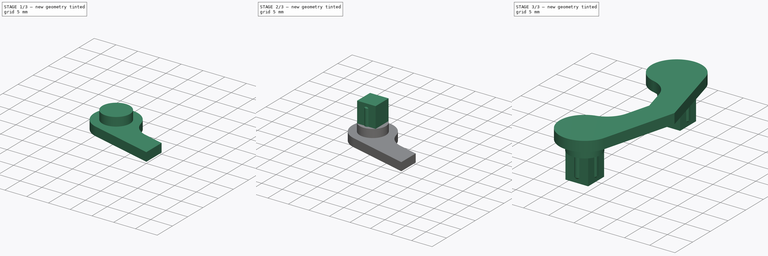
[diagram: build sequence overview — one tinted view per stage of 3, left to right]
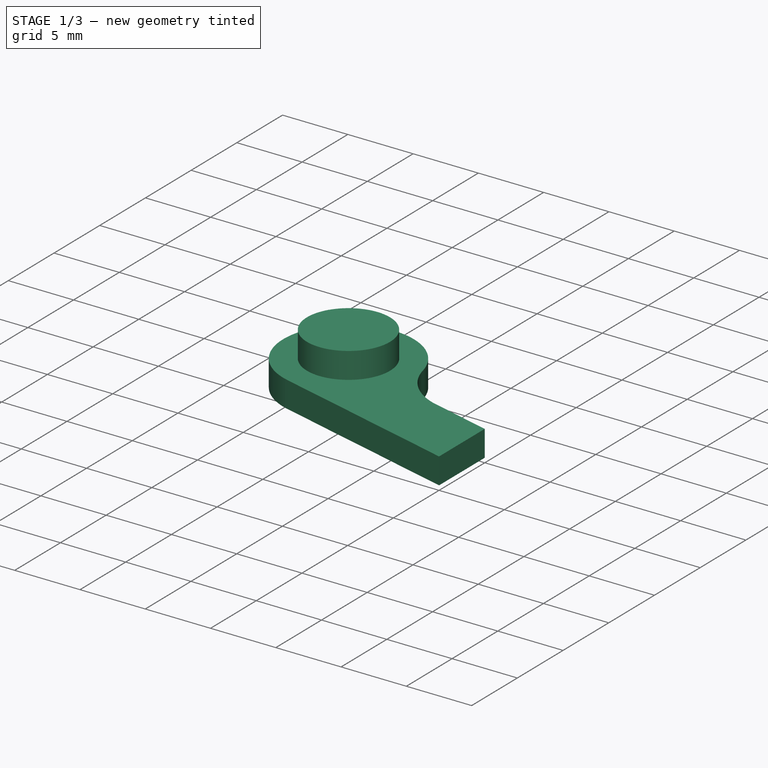
[diagram: stage 1 of 3 — iso view after this stage's code; geometry added in this stage tinted green]
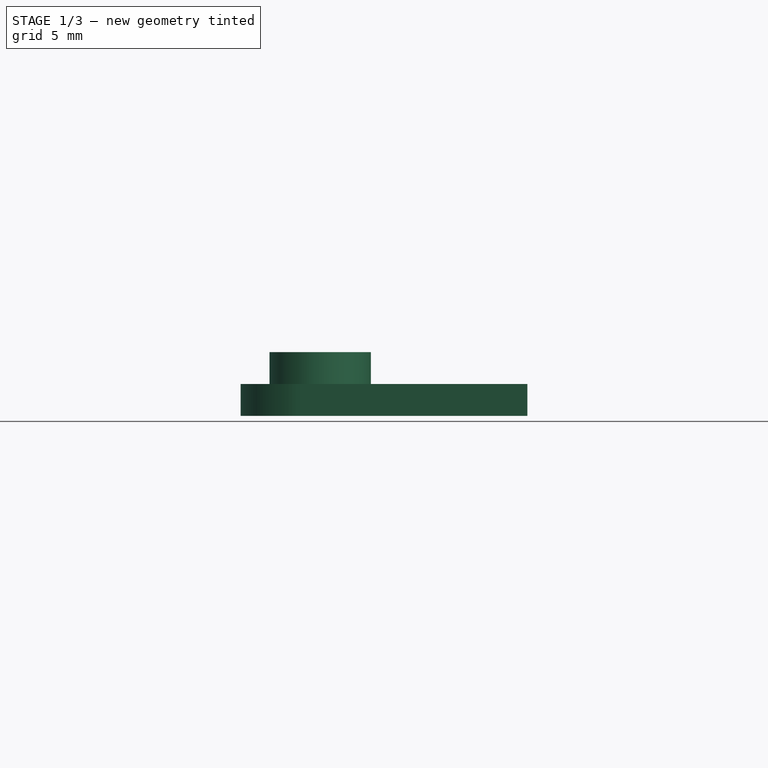
[diagram: stage 1 of 3 — front view after this stage's code; geometry added in this stage tinted green]
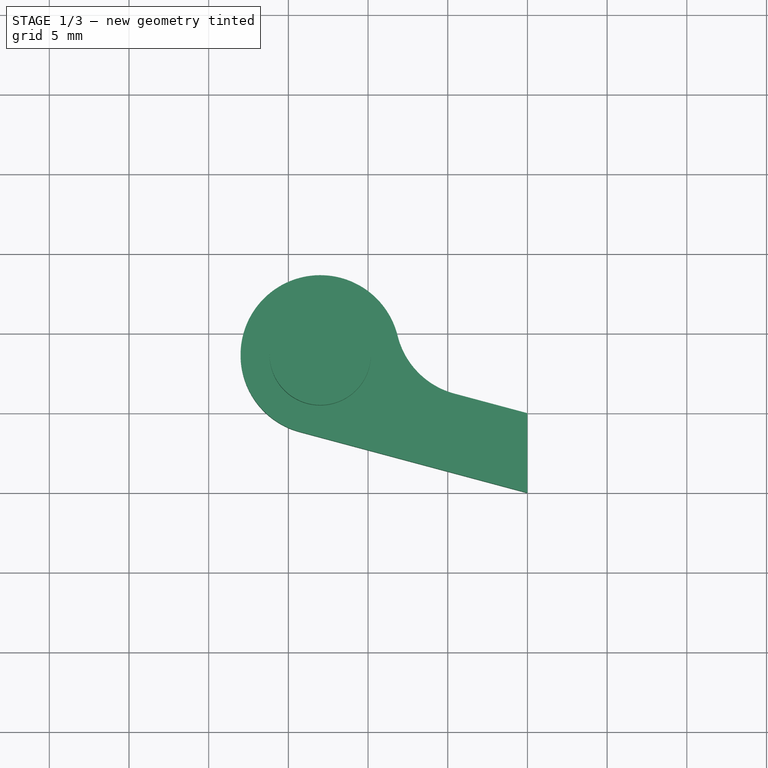
[diagram: stage 1 of 3 — top view after this stage's code; geometry added in this stage tinted green]
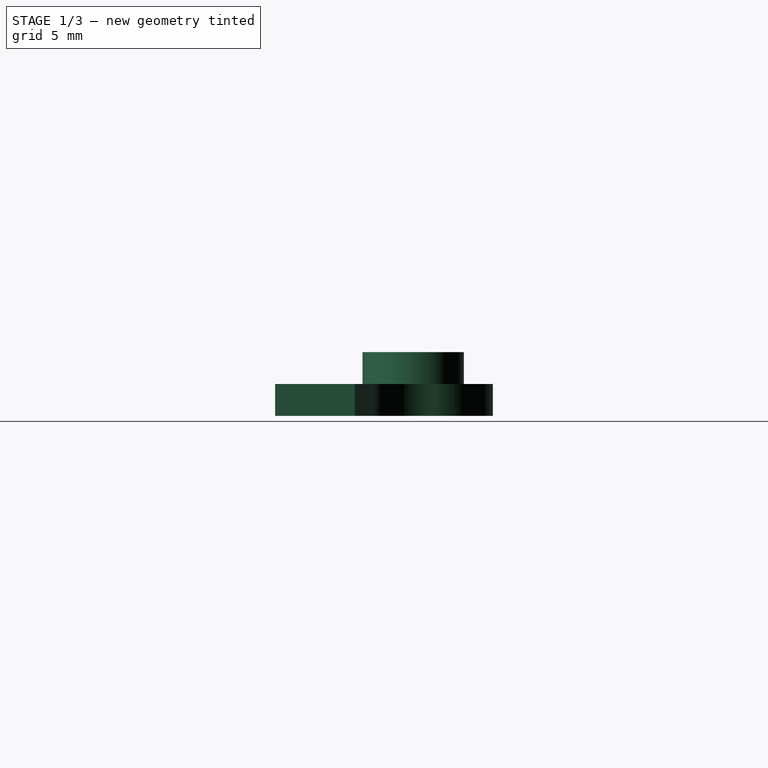
[diagram: stage 1 of 3 — right view after this stage's code; geometry added in this stage tinted green]
FCSTD DOCUMENT  (FreeCAD 1.0R39109 (Git))
Label: Hanger Clip
License: All rights reserved
LicenseURL: https://en.wikipedia.org/wiki/All_rights_reserved
objects: Sketcher::SketchObject×5, PartDesign::Pad×4, PartDesign::AdditiveLoft×1, PartDesign::PolarPattern×1, PartDesign::Mirrored×1, PartDesign::Body×1
note: 30 computed .brp shape members not serialized (recipe doc carries the construction recipe); baked Part::Feature solids carry a one-line shape summary decoded from their .brp

FEATURE [Sketcher::SketchObject] Sketch
  ArcFitTolerance = 1e-06
  AttachmentSupport = -> [XY_Plane]
  FullyConstrained = true
  MakeInternals = false
  MapMode = 5
  sketch-geometry (11):
    g0: ArcOfCircle CenterX=-3.29196 CenterY=6.05846 CenterZ=0 NormalX=0 NormalY=0 NormalZ=1 AngleXU=0 Radius=5 StartAngle=3.38383 EndAngle=4.45059
    g1: LineSegment StartX=-4.58605 StartY=1.22883 StartZ=0 EndX=0 EndY=2e-16 EndZ=0
    g2: LineSegment StartX=0 StartY=-5 StartZ=0 EndX=-14.2941 EndY=-1.16991 EndZ=0
    g3: ArcOfCircle CenterX=-13 CenterY=3.65972 CenterZ=0 NormalX=0 NormalY=0 NormalZ=1 AngleXU=0 Radius=5 StartAngle=0.242236 EndAngle=4.45059
    g4: LineSegment [constr] StartX=-3.29196 StartY=6.05846 StartZ=0 EndX=-8.14598 EndY=4.85909 EndZ=0
    g5: LineSegment [constr] StartX=-8.14598 StartY=4.85909 StartZ=0 EndX=-13 EndY=3.65972 EndZ=0
    g6: LineSegment [constr] StartX=-13 StartY=3.65972 StartZ=0 EndX=0 EndY=3.65972 EndZ=0
    g7: LineSegment [constr] StartX=-3.29196 StartY=6.05846 StartZ=0 EndX=0 EndY=6.05846 EndZ=0
    g8: LineSegment [constr] StartX=-13 StartY=-5 StartZ=0 EndX=0 EndY=-5 EndZ=0
    g9: LineSegment [constr] StartX=-13 StartY=3.65972 StartZ=0 EndX=-13 EndY=-5 EndZ=0
    g10: LineSegment StartX=0 StartY=-5 StartZ=0 EndX=0 EndY=0 EndZ=0
  constraints (29):
    c: PointOnObject(g2,g-2)
    c: Tangent(g1,g0) = -1.5708
    c: Tangent(g3,g0) = 1.5708
    c: Tangent(g3,g2) = 1.5708
    c: Coincident(g4,g0)
    c: Coincident(g4,g0)
    c: Coincident(g5,g0)
    c: Coincident(g5,g3)
    c: Equal(g4,g5)
    c: Coincident(g6,g3)
    c: PointOnObject(g6,g-2)
    c: Horizontal(g6)
    c: Coincident(g7,g0)
    c: PointOnObject(g7,g-2)
    c: Horizontal(g7)
    c: Horizontal(g8)
    c: PointOnObject(g2,g8)
    c: Coincident(g9,g3)
    c: Coincident(g9,g8)
    c: Vertical(g9)
    c: Distance(g8,g-1) = 5
    c: Radius(g3) = 5
    c: Parallel(g1,g2)
    c: PointOnObject(g8,g-2)
    c: Coincident(g1,g-1)
    c: Coincident(g10,g2)
    c: Coincident(g10,g1)
    c: DistanceX(g6,g6) = 13
    c: Angle(g2,g8) = 0.261799
FEATURE [PartDesign::Pad] Pad
  Direction = (0,0,1)
  Length = 2
  Length2 = 10
  Profile = -> Sketch
  ReferenceAxis = -> Sketch [N_Axis]
  Refine = true
  Suppressed = false
  Type = 0
FEATURE [Sketcher::SketchObject] Sketch001
  ArcFitTolerance = 1e-06
  AttachmentSupport = -> [Pad]
  ExternalGeometry = -> [Pad]
  FullyConstrained = true
  MakeInternals = false
  MapMode = 5
  Placement = pos=(0,0,2) rot=(0,0,1;0rad)
  sketch-geometry (1):
    g0: Circle CenterX=-13 CenterY=3.65972 CenterZ=0 NormalX=0 NormalY=0 NormalZ=1 AngleXU=0 Radius=3.18
  constraints (2):
    c: Diameter(g0) = 6.36
    c: Coincident(g-3,g0)
FEATURE [PartDesign::Pad] Pad001
  BaseFeature = -> Pad
  Direction = (0,0,1)
  Length = 2
  Length2 = 10
  Profile = -> Sketch001
  ReferenceAxis = -> Sketch001 [N_Axis]
  Refine = true
  Suppressed = false
  Type = 0
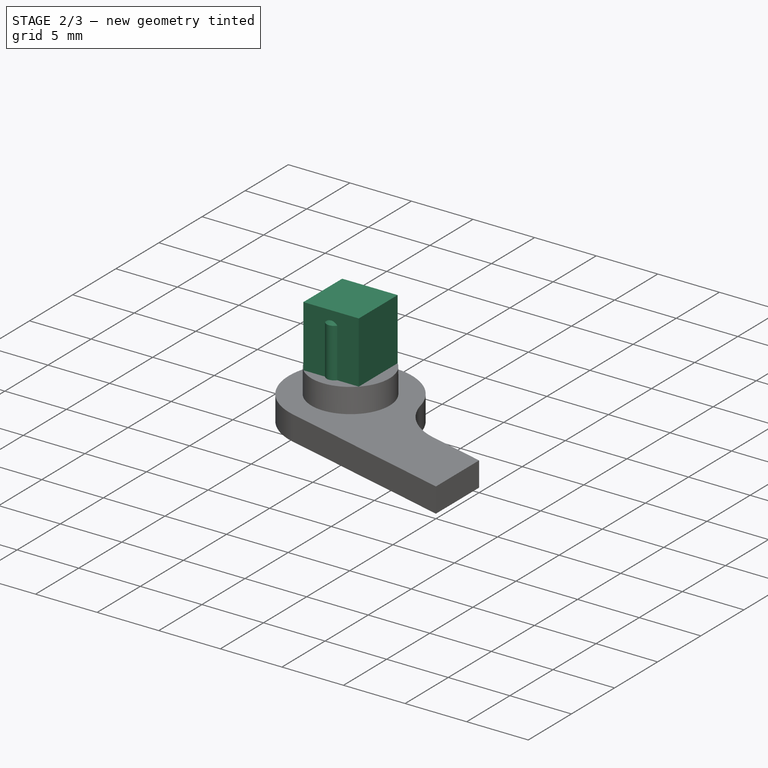
[diagram: stage 2 of 3 — iso view after this stage's code; geometry added in this stage tinted green]
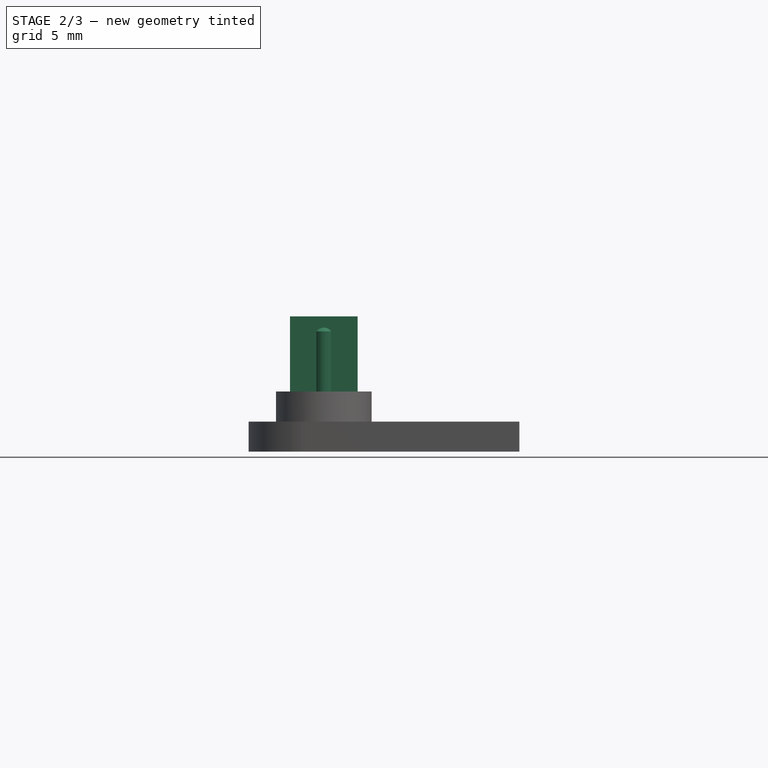
[diagram: stage 2 of 3 — front view after this stage's code; geometry added in this stage tinted green]
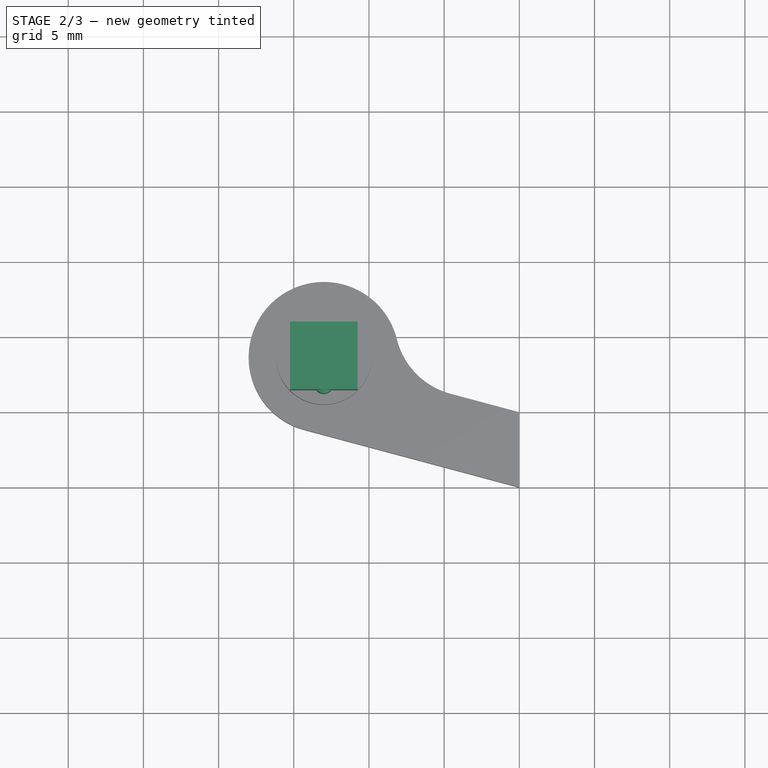
[diagram: stage 2 of 3 — top view after this stage's code; geometry added in this stage tinted green]
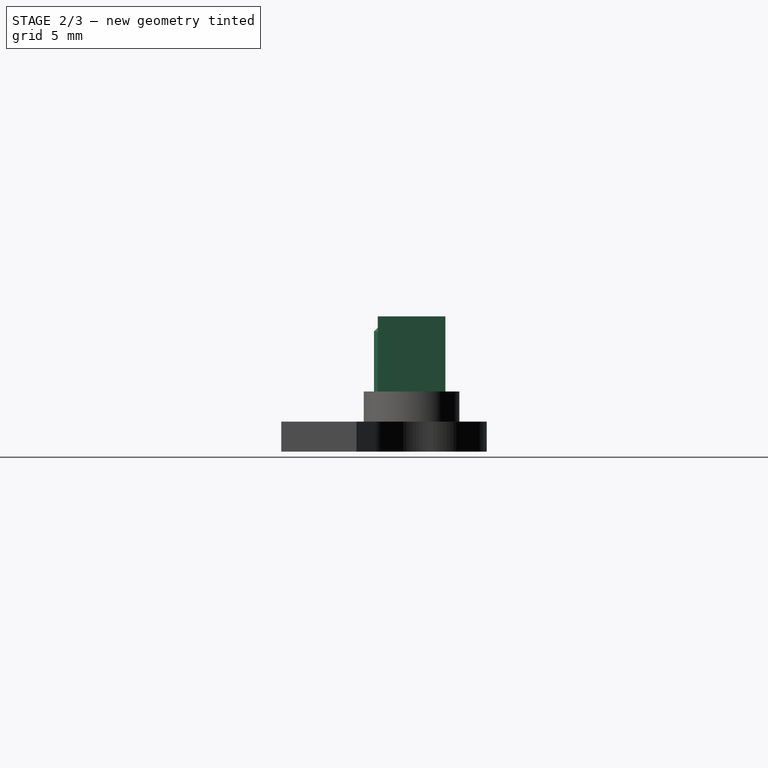
[diagram: stage 2 of 3 — right view after this stage's code; geometry added in this stage tinted green]
FEATURE [Sketcher::SketchObject] Sketch007
  ArcFitTolerance = 1e-06
  AttachmentSupport = -> [Pad001]
  ExternalGeometry = -> [Pad001]
  FullyConstrained = true
  MakeInternals = false
  MapMode = 11
  Placement = pos=(-13,3.65972,4) rot=(0,0,1;1.5708rad)
  sketch-geometry (4):
    g0: LineSegment StartX=2.2486 StartY=2.2486 StartZ=0 EndX=-2.2486 EndY=2.2486 EndZ=0
    g1: LineSegment StartX=-2.2486 StartY=2.2486 StartZ=0 EndX=-2.2486 EndY=-2.2486 EndZ=0
    g2: LineSegment StartX=-2.2486 StartY=-2.2486 StartZ=0 EndX=2.2486 EndY=-2.2486 EndZ=0
    g3: LineSegment StartX=2.2486 StartY=-2.2486 StartZ=0 EndX=2.2486 EndY=2.2486 EndZ=0
  constraints (12):
    c: Coincident(g0,g1)
    c: Coincident(g1,g2)
    c: Coincident(g2,g3)
    c: Coincident(g3,g0)
    c: Horizontal(g0)
    c: Horizontal(g2)
    c: Vertical(g1)
    c: Vertical(g3)
    c: PointOnObject(g0,g-3)
    c: PointOnObject(g1,g-3)
    c: PointOnObject(g2,g-3)
    c: Equal(g2,g1)
FEATURE [PartDesign::Pad] Pad002
  BaseFeature = -> Pad001
  Direction = (0,0,1)
  Length = 5
  Length2 = 10
  Profile = -> Sketch007
  ReferenceAxis = -> Sketch007 [N_Axis]
  Refine = true
  Suppressed = false
  Type = 0
FEATURE [Sketcher::SketchObject] Sketch004
  ArcFitTolerance = 1e-06
  AttachmentSupport = -> [Pad002]
  ExternalGeometry = -> [Pad002]
  FullyConstrained = true
  MakeInternals = false
  MapMode = 5
  Placement = pos=(0,0,4) rot=(0,0,1;0rad)
  sketch-geometry (5):
    g0: ArcOfCircle CenterX=-13 CenterY=1.78612 CenterZ=0 NormalX=0 NormalY=0 NormalZ=1 AngleXU=0 Radius=0.625 StartAngle=3.78509 EndAngle=5.63968
    g1: LineSegment [constr] StartX=-15.2486 StartY=1.41112 StartZ=0 EndX=-13.5 EndY=1.41112 EndZ=0
    g2: LineSegment [constr] StartX=-12.5 StartY=1.41112 StartZ=0 EndX=-10.7514 EndY=1.41112 EndZ=0
    g3: LineSegment [constr] StartX=-13 StartY=1.16112 StartZ=0 EndX=-11.0329 EndY=1.16112 EndZ=0
    g4: LineSegment StartX=-12.5 StartY=1.41112 StartZ=0 EndX=-13.5 EndY=1.41112 EndZ=0
  constraints (15):
    c: Coincident(g1,g-3)
    c: Coincident(g1,g0)
    c: Coincident(g2,g0)
    c: Coincident(g2,g-3)
    c: PointOnObject(g3,g-3)
    c: Horizontal(g3)
    c: Horizontal(g2)
    c: Horizontal(g1)
    c: Tangent(g3,g0) = -1.5708
    c: Distance(g2,g3) = 0.25
    c: Equal(g2,g1)
    c: PointOnObject(g4,g0)
    c: Horizontal(g4)
    c: Coincident(g4,g0)
    c: DistanceX(g4,g4) = 1
FEATURE [PartDesign::Pad] Pad003
  BaseFeature = -> Pad002
  Direction = (0,0,1)
  Length = 4
  Length2 = 10
  Profile = -> Sketch004
  ReferenceAxis = -> Sketch004 [N_Axis]
  Refine = true
  Suppressed = false
  Type = 0
FEATURE [Sketcher::SketchObject] Sketch006
  ArcFitTolerance = 1e-06
  AttachmentSupport = -> [Pad003]
  ExternalGeometry = -> [Pad003]
  FullyConstrained = true
  MakeInternals = false
  MapMode = 5
  Placement = pos=(3e-16,1.41112,0) rot=(1,0,0;1.5708rad)
  sketch-geometry (4):
    g0: ArcOfCircle CenterX=-13 CenterY=7.625 CenterZ=0 NormalX=0 NormalY=0 NormalZ=1 AngleXU=0 Radius=0.625 StartAngle=0.643501 EndAngle=2.49809
    g1: LineSegment [constr] StartX=-13.5 StartY=8 StartZ=0 EndX=-13.5 EndY=8.25 EndZ=0
    g2: LineSegment [constr] StartX=-13.5 StartY=8.25 StartZ=0 EndX=-13 EndY=8.25 EndZ=0
    g3: LineSegment StartX=-13.5 StartY=8 StartZ=0 EndX=-12.5 EndY=8 EndZ=0
  constraints (11):
    c: Coincident(g1,g0)
    c: Vertical(g1)
    c: Coincident(g2,g1)
    c: Tangent(g2,g0) = 1.5708
    c: Horizontal(g2)
    c: DistanceY(g1,g1) = 0.25
    c: Coincident(g3,g0)
    c: Coincident(g3,g0)
    c: PointOnObject(g-3,g0)
    c: PointOnObject(g-3,g3)
    c: Coincident(g0,g-3)
FEATURE [PartDesign::AdditiveLoft] AdditiveLoft
  BaseFeature = -> Pad003
  Closed = false
  Profile = -> Sketch006
  Refine = true
  Ruled = false
  Sections = -> [Pad003]
  Suppressed = false
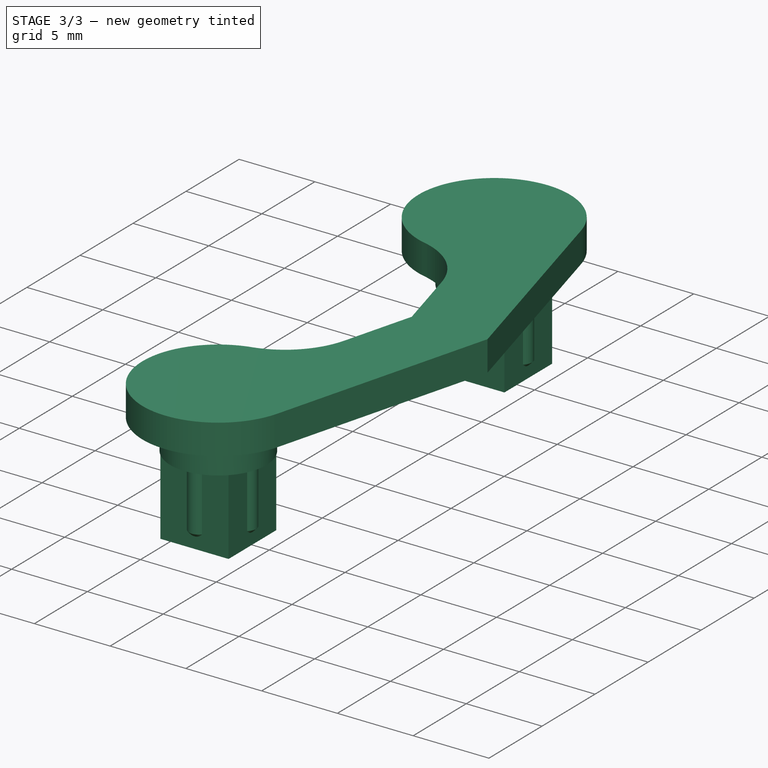
[diagram: stage 3 of 3 — iso view after this stage's code; geometry added in this stage tinted green]
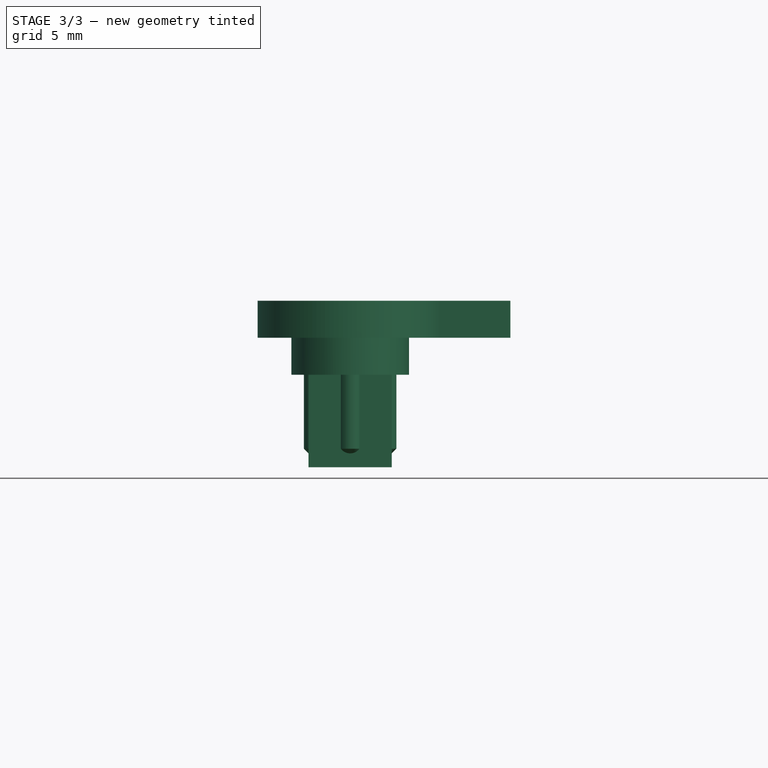
[diagram: stage 3 of 3 — front view after this stage's code; geometry added in this stage tinted green]
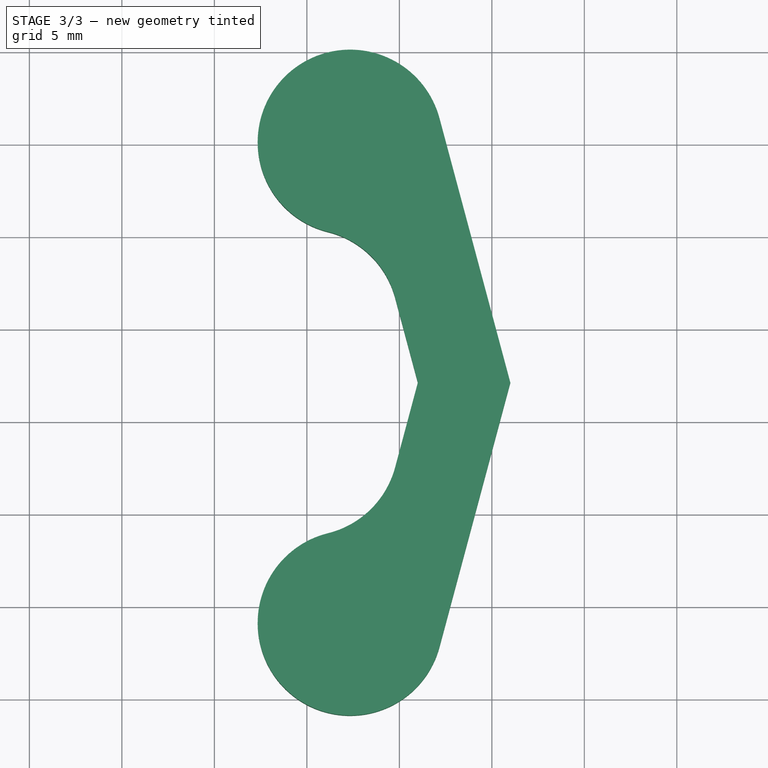
[diagram: stage 3 of 3 — top view after this stage's code; geometry added in this stage tinted green]
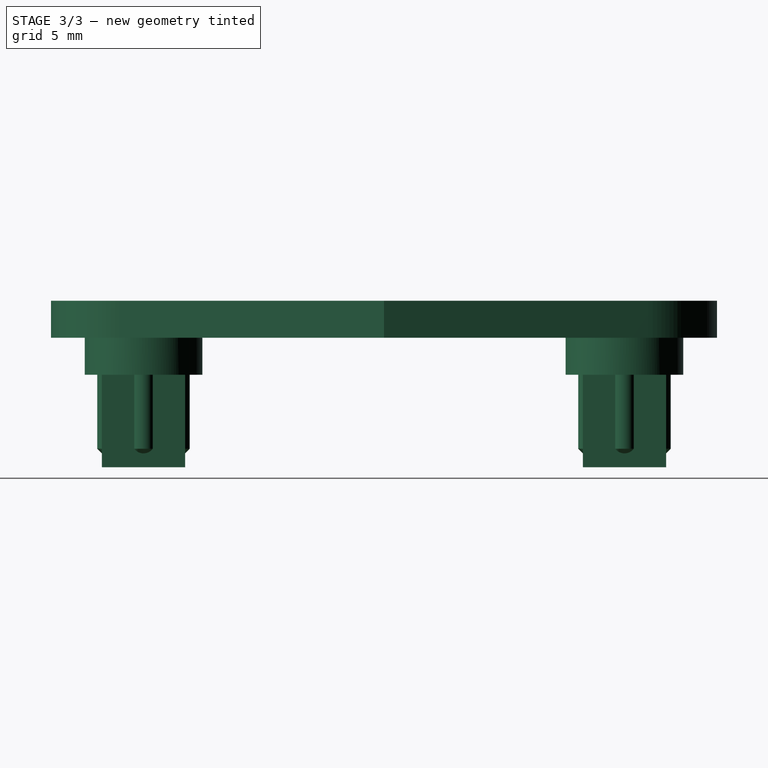
[diagram: stage 3 of 3 — right view after this stage's code; geometry added in this stage tinted green]
FEATURE [PartDesign::PolarPattern] PolarPattern
  Angle = 360
  Axis = -> AdditiveLoft [Edge15]
  BaseFeature = -> AdditiveLoft
  Mode = 0
  Occurrences = 4
  Offset = 120
  Originals = -> [Pad003,AdditiveLoft]
  Refine = true
  Suppressed = false
  TransformMode = 0
FEATURE [PartDesign::Mirrored] Mirrored
  BaseFeature = -> PolarPattern
  MirrorPlane = -> YZ_Plane
  Placement = pos=(56,-28,21) rot=(-0.707107,0.707107,0;3.14159rad)
  Refine = true
  Suppressed = false
  TransformMode = 1
FEATURE [PartDesign::Body] Body
  AllowCompound = false
  Group = -> [Sketch,Pad,Sketch001,Pad001,Sketch007,Pad002,Sketch004,Pad003,Sketch006,AdditiveLoft,PolarPattern,Mirrored]
  Origin = -> Origin
  Tip = -> Mirrored
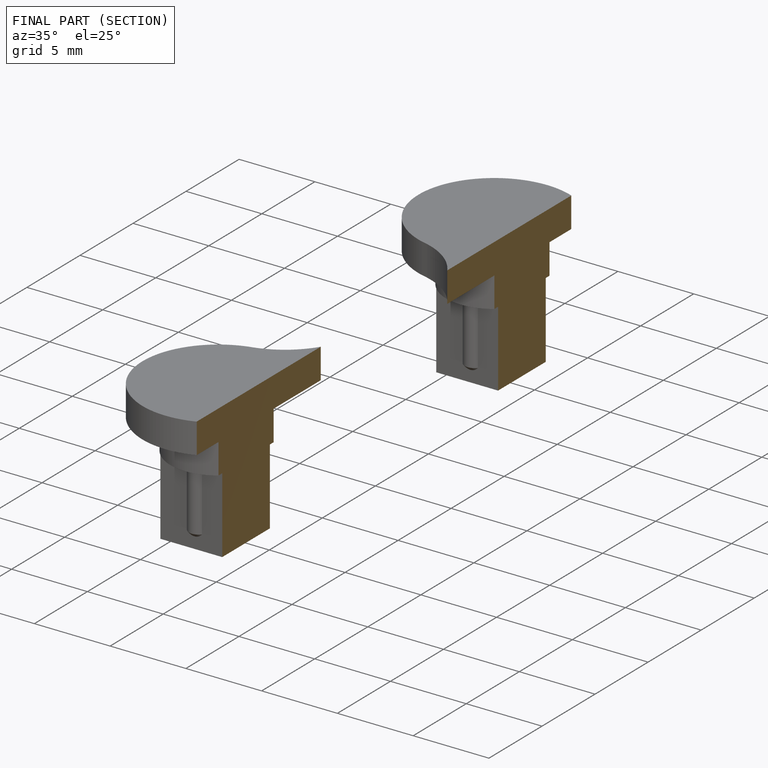
[diagram: finished part — half-section view (interior)]
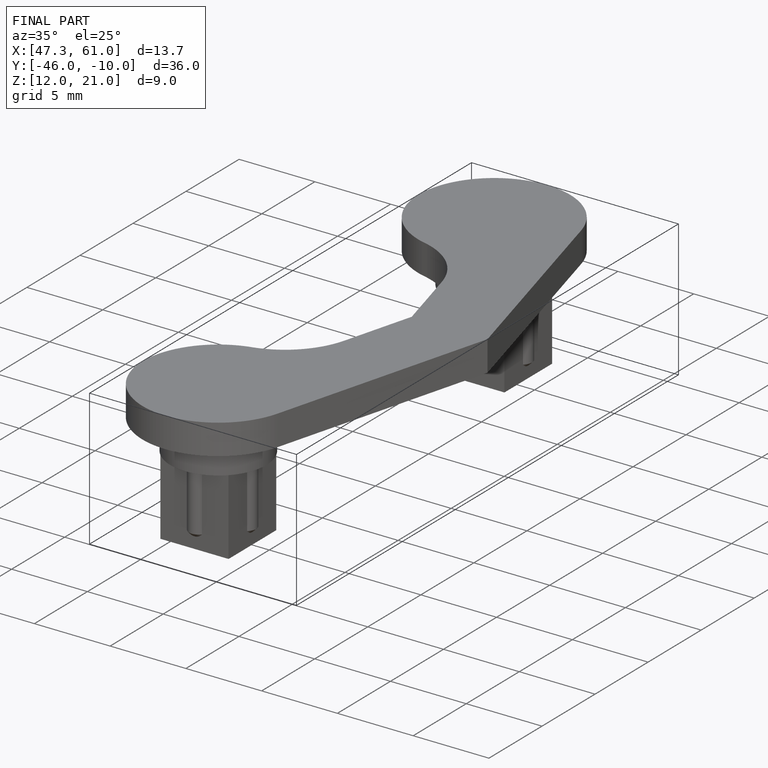
[diagram: finished part — iso view with bounding-box wireframe]
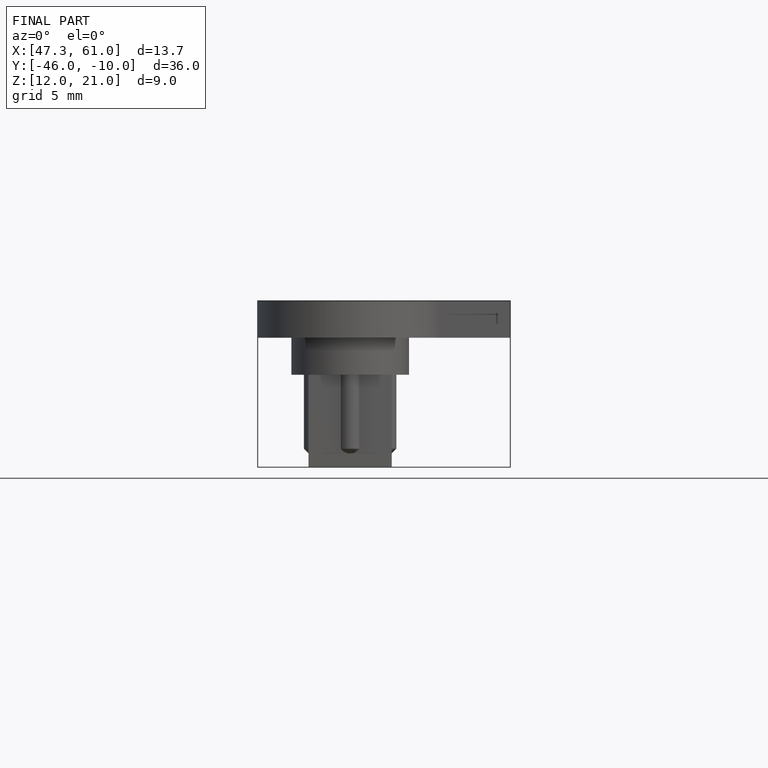
[diagram: finished part — front view with bounding-box wireframe]
